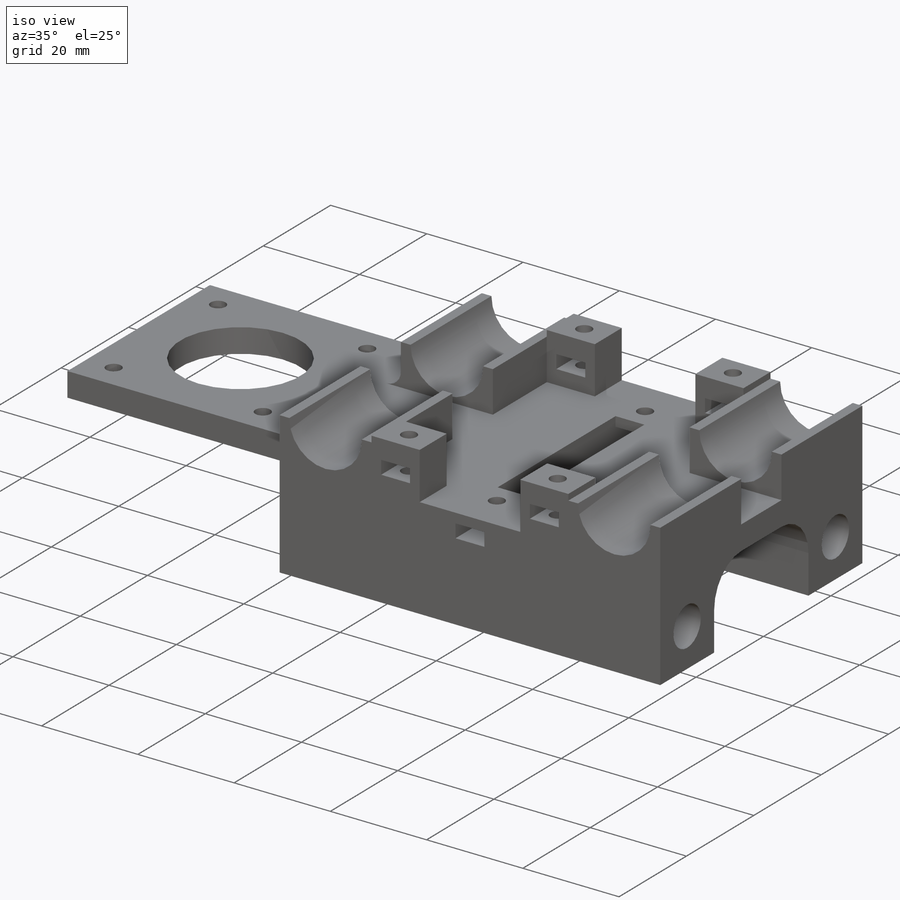
[diagram: iso view]
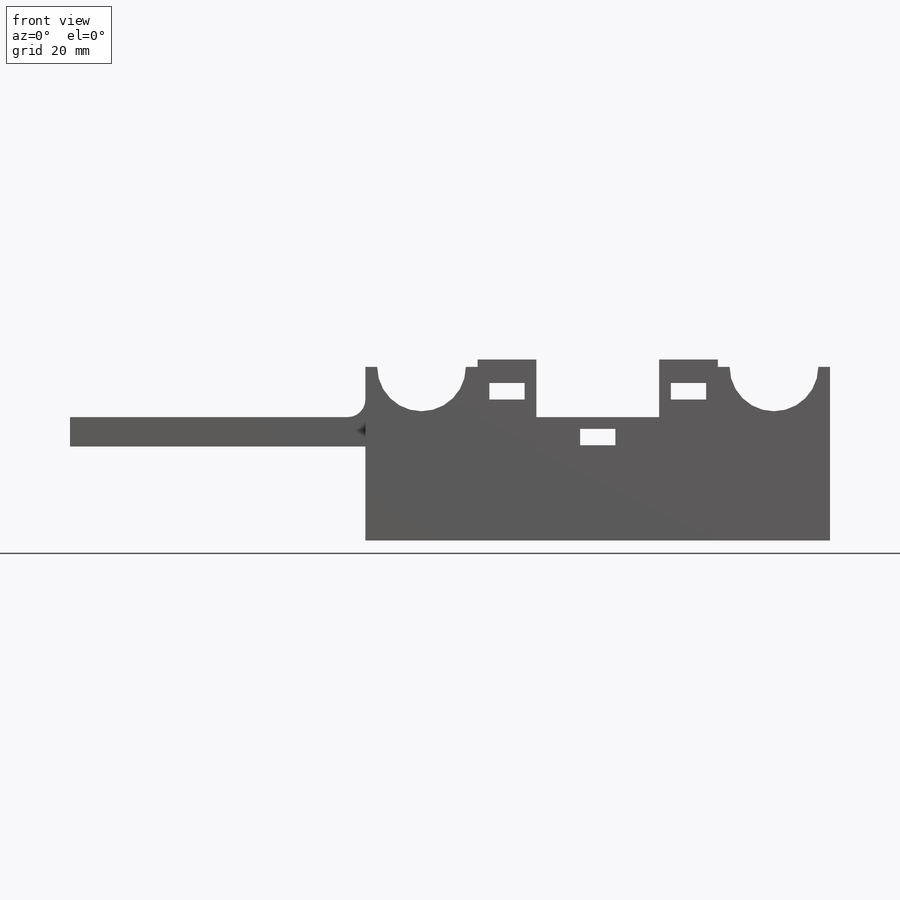
[diagram: front view]
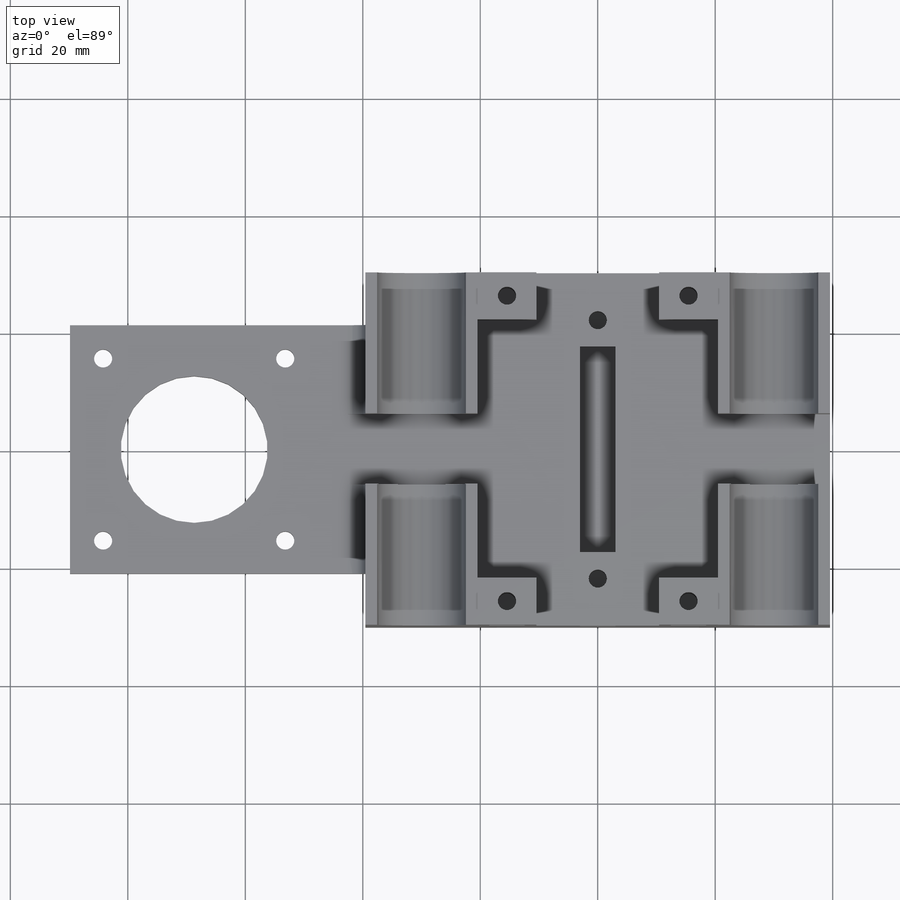
[diagram: top view]
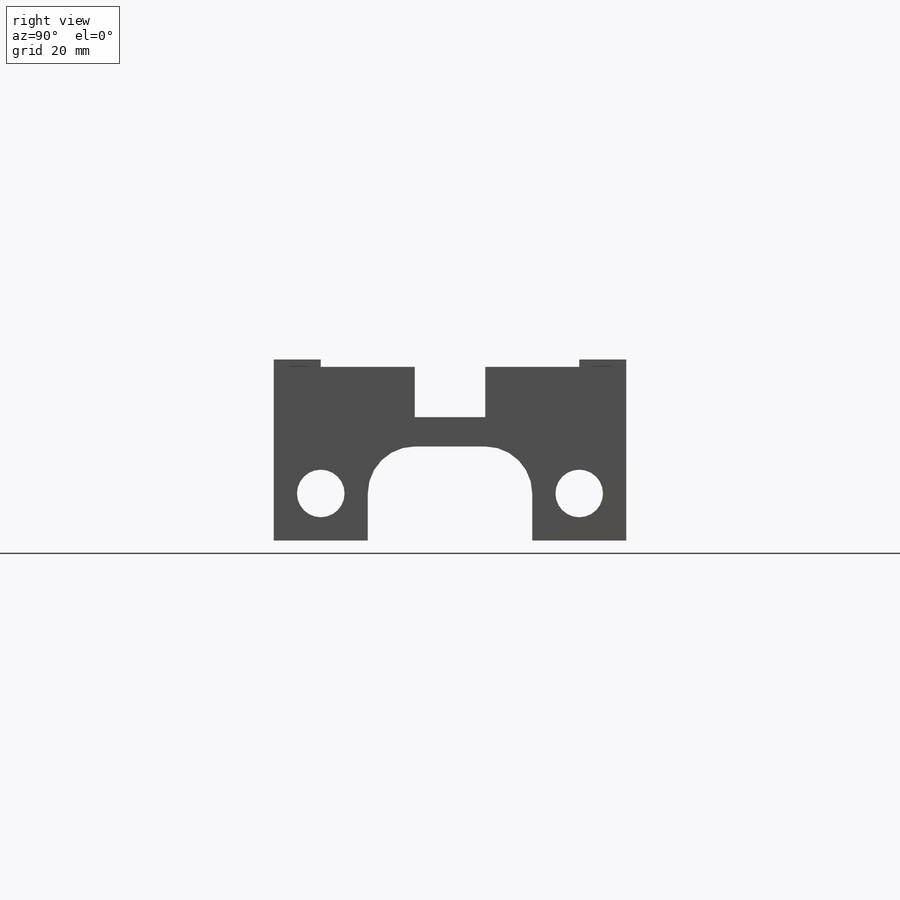
[diagram: right view]
SOLIDWORKS PART (.sldprt)
format: sldprt  version: not decoded by parser v0  size: 531,968 bytes
history: native  units: mm
features: sketch x11, extrude x5, cut_extrude x5, mirror x4, fillet x3, plane x2, material x1 (+13 scaffold rows collapsed)
feature tree (44):
  scaffold x13  (default folders/planes/origin — collapsed)
  material  "Material <not specified>"
  sketch  "Sketch1"  dims[D1=60.0mm D2=79.1mm D3=39.55mm D4=30.0mm]
  extrude  "Boss-Extrude1"  Depth=5mm
  sketch  "Sketch2"  dims[D3=15.1mm D1=19.1mm D2=8.55mm D4=30.0mm]
  extrude  "Boss-Extrude2"  Depth=24mm
  mirror  "Mirror1"
  mirror  "Mirror2"
  plane  "Plane1"
  plane  "Plane2"
  sketch  "Sketch3"  dims[D1=3.5mm D2=12.0mm D3=3.5mm]
  sketch  "Sketch9"  dims[D1=2.8mm D2=6.0mm D3=2.0mm D4=2.0mm D5=4.0mm D6=3.0mm]
  extrude  "Boss-Extrude4"  Depth=8mm
  mirror  "Mirror8"
  mirror  "Mirror9"
  sketch  "Sketch10"  dims[D1=3.1mm D2=4.0mm D3=5.0mm D4=5.0mm D5=4.0mm D6=4.0mm D7=5.0mm D8=5.0mm D9=4.0mm]
  cut_extrude  "Cut-Extrude6"  [1 undecoded]
  sketch  "Sketch11"  dims[D1=16.0mm D2=16.0mm D3=0.0mm D4=0.0mm]
  extrude  "Boss-Extrude5"  Depth=16mm
  sketch  "Sketch12"  dims[D1=8.1mm D2=8.0mm D3=8.0mm]
  cut_extrude  "Cut-Extrude7"  [1 undecoded]
  sketch  "Sketch13"  dims[c1.D1=~2.041335mm c1.D2=~8.505562mm c2.D1=6.0mm c2.D2=2.8mm c2.D3=2.0mm]
  cut_extrude  "Cut-Extrude8"  [1 undecoded]
  sketch  "Sketch14"  dims[c1.D1=3.1mm c1.D2=8.0mm c1.D3=8.0mm c1.D4=~34.532581mm c1.D5=~4.763115mm c2.D4=6.0mm c2.D5=35.0mm]
  cut_extrude  "Cut-Extrude9"  Depth=10mm
  cut_extrude  "Cut-Extrude10"  [1 undecoded]
  sketch  "Sketch14<3>"
  fillet  "Fillet1"  Radius=8mm
  fillet  "Fillet2"  Radius=8mm
  sketch  "Sketch15"  dims[D7=3.1mm D8=25.0mm D1=50.3mm D2=42.3mm D3=21.15mm D4=31.0mm D5=31.0mm D6=21.15mm]
  extrude  "Boss-Extrude6"  Depth=5mm
  fillet  "Fillet3"  Radius=3mm
decode coverage: 19 of 28 modeling features carry decoded parameters
note: ~ marks probable driven/reference dimensions
note: 4 parameter values undecoded
summary: no parameter record found for 4 features
note: suppression state not decoded; provenance and decode notes live in map.json
